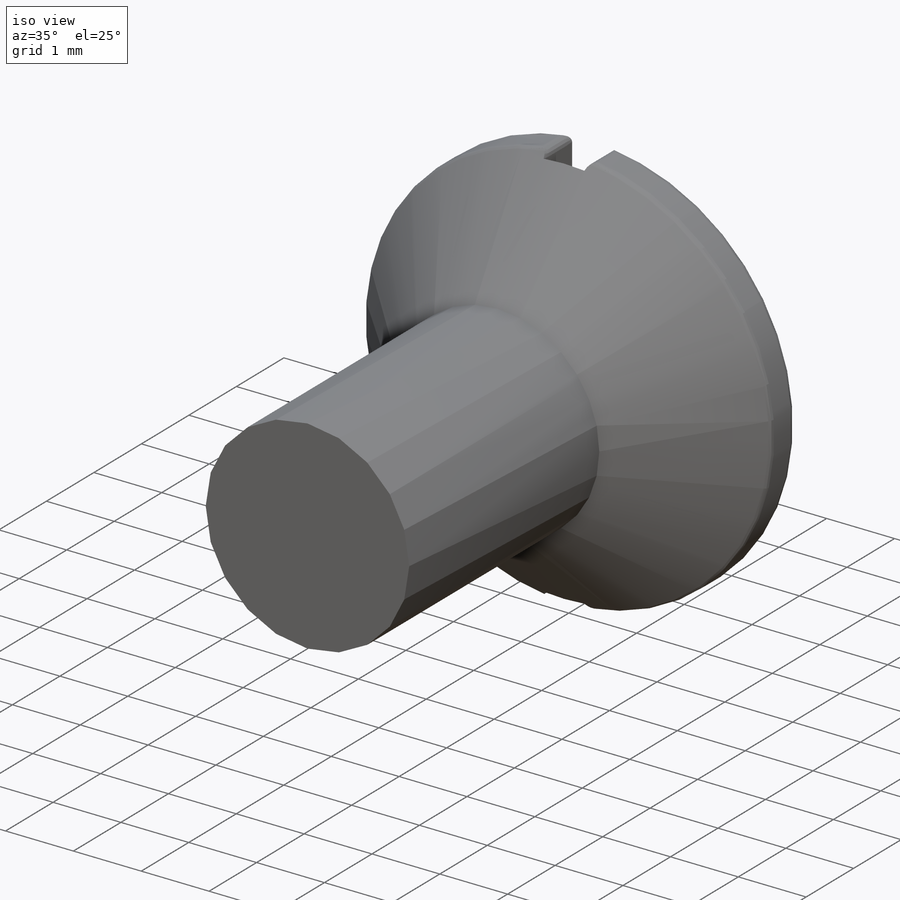
[diagram: iso view]
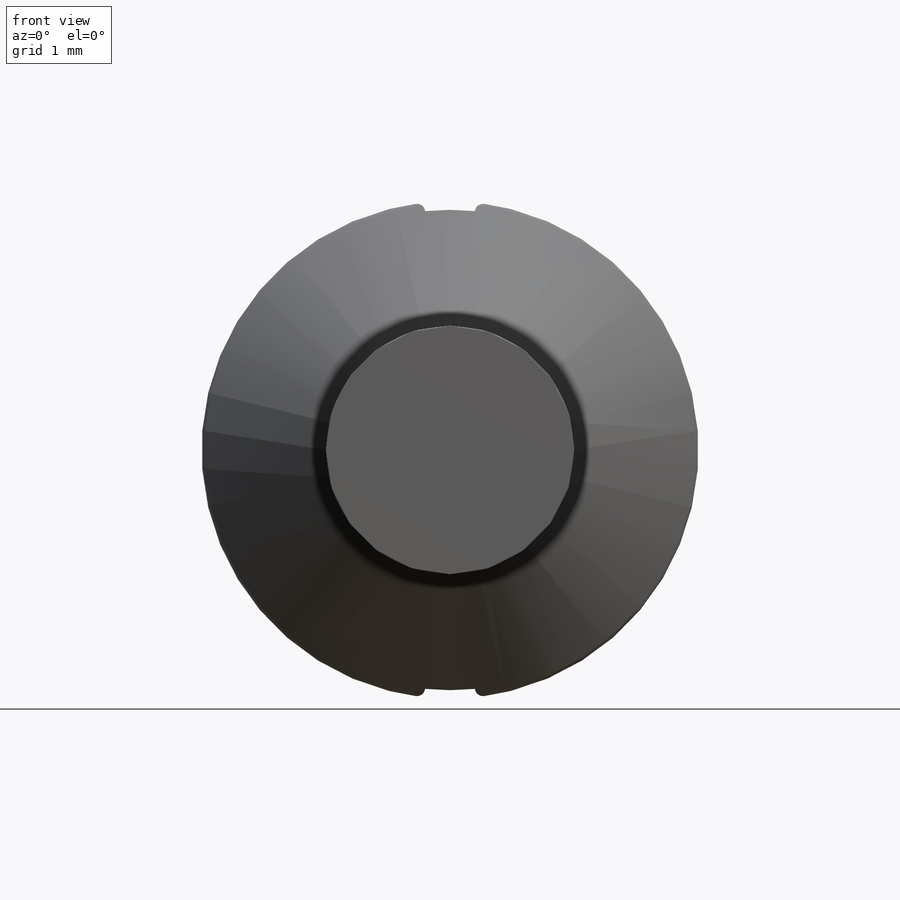
[diagram: front view]
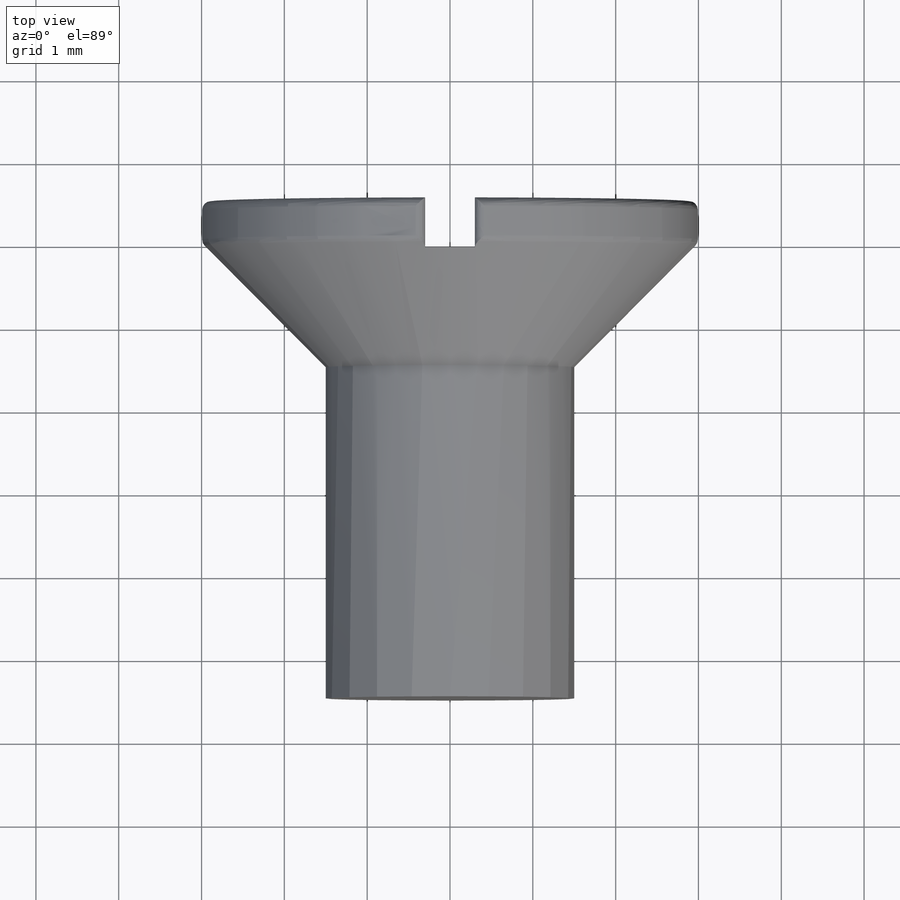
[diagram: top view]
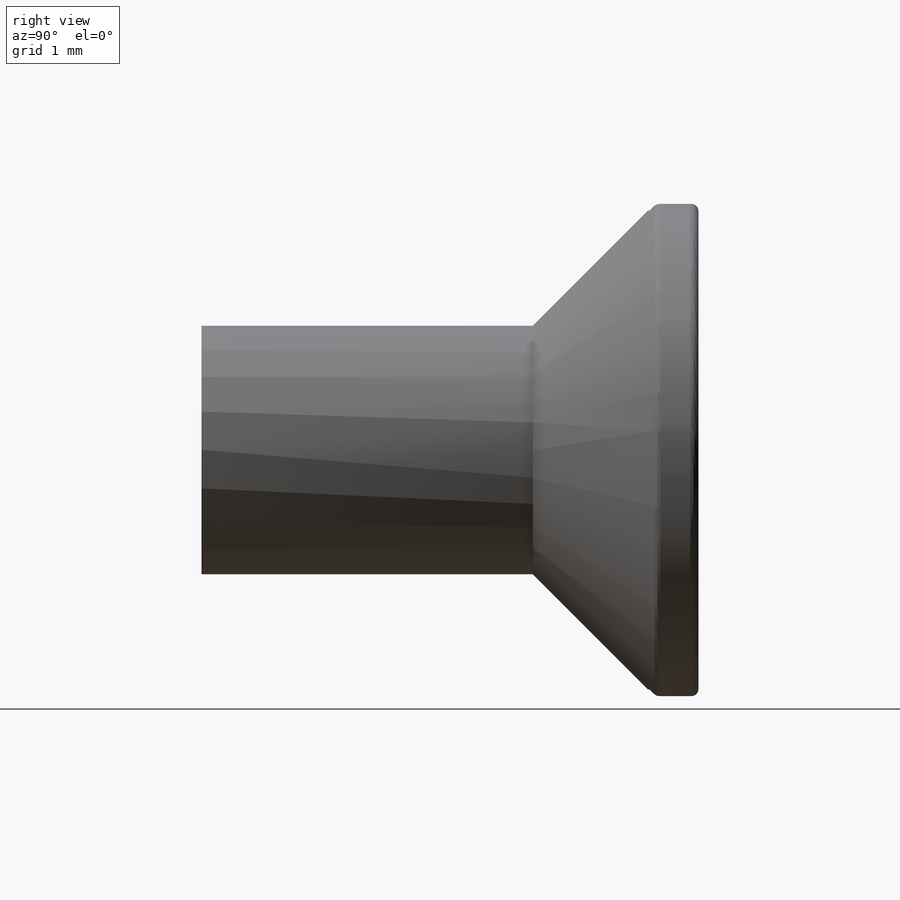
[diagram: right view]
SOLIDWORKS PART (.sldprt)
format: sldprt  version: not decoded by parser v0  size: 268,288 bytes
history: native  units: mm
features: sketch x4, extrude x3, material x1, cut_extrude x1, fillet x1 (+12 scaffold rows collapsed)
feature tree (22):
  scaffold x12  (default folders/planes/origin — collapsed)
  material  "Material <not specified>"
  sketch  "Sketch1"  dims[D1=6.0mm]
  extrude  "Base-Extrude"  Depth=1.5mm
  sketch  "Sketch2"  dims[D1=3.0mm]
  extrude  "Boss-Extrude1"  Depth=4mm
  sketch  "Sketch5"
  extrude  "Boss-Extrude2"  Depth=0.5mm
  sketch  "Sketch6"  dims[D1=0.3mm D2=0.6mm]
  cut_extrude  "Cut-Extrude2"  Depth=0.6mm
  fillet  "Fillet1"  Radius=0.1mm
decode coverage: 8 of 9 modeling features carry decoded parameters
note: suppression state not decoded; provenance and decode notes live in map.json
